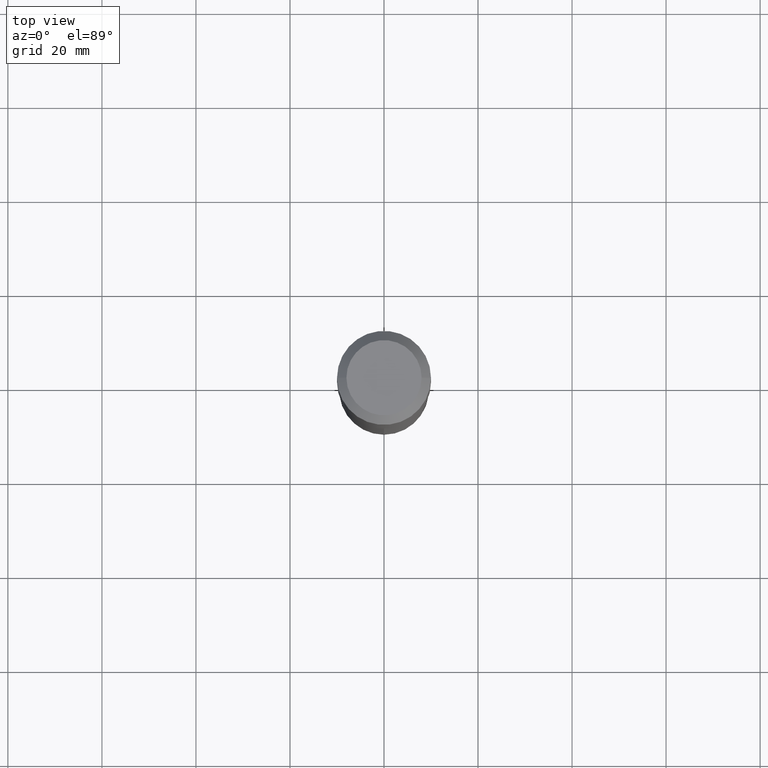
[diagram: clean part render]
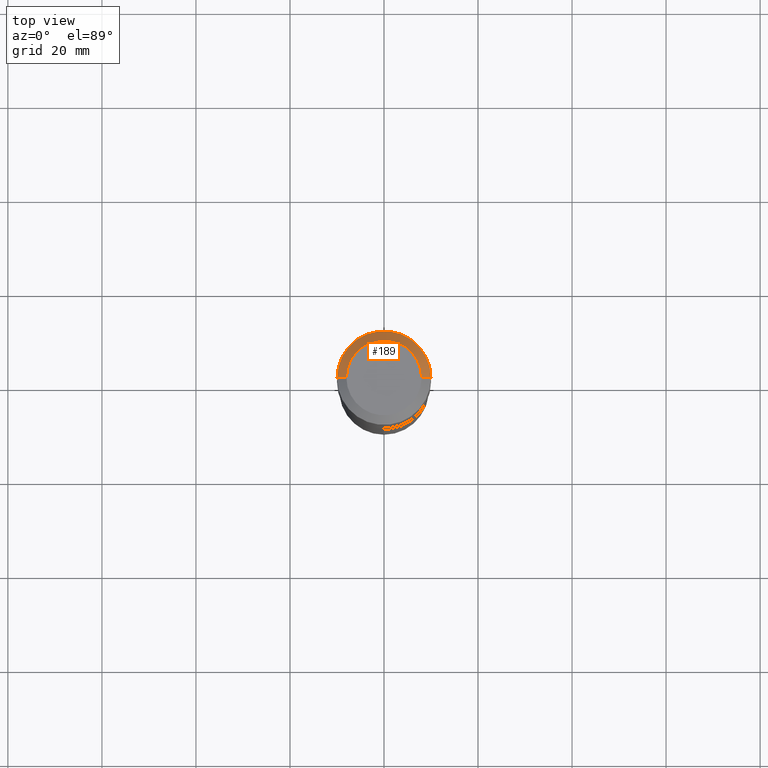
[diagram: same view with one face highlighted and labeled with its STEP entity id]
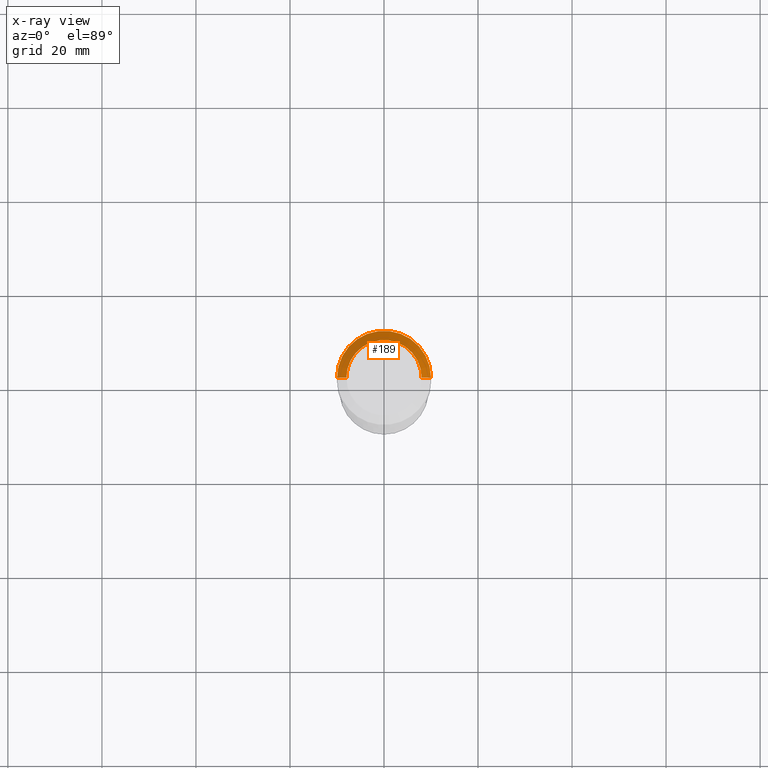
[diagram: x-ray of the same camera — body ghosted, the highlighted face saturated]
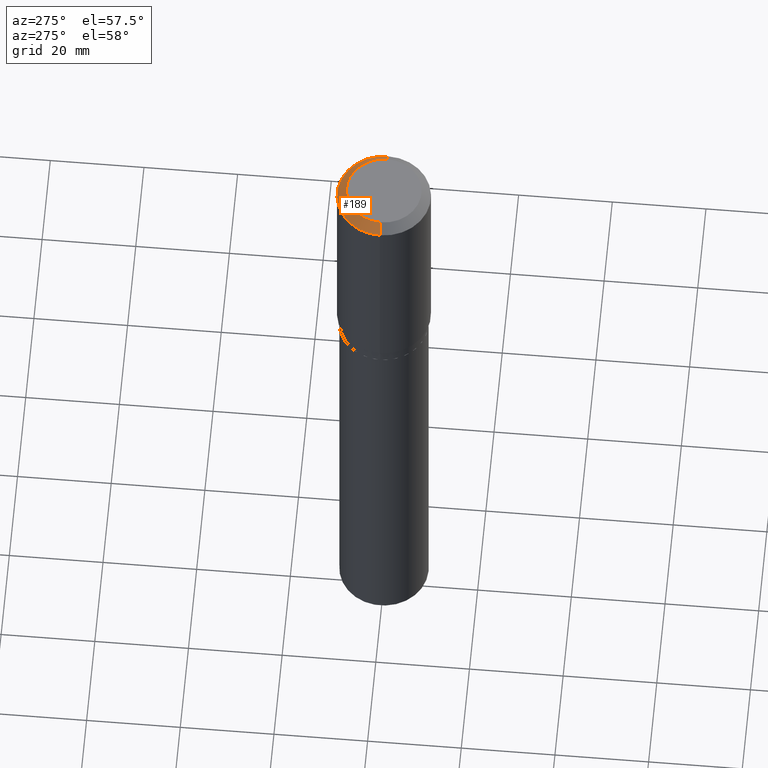
[diagram: same view with one face highlighted and labeled with its STEP entity id]
A machine part, top view. The second image highlights one B-rep face of the part: STEP entity #189.
The next image is the same camera in x-ray: the body ghosted, the highlighted face saturated — about 0% of this face is hidden behind the body in this view.
A second angle (auxiliary view) of the same face is appended — the face is thin or edge-on in the first view.
In plain terms, the highlighted conical surface has half-angle 45 deg.
Its self-contained STEP definition (entity closure, byte-faithful):
#3 = CARTESIAN_POINT ( 'NONE',  ( 1.925562137990188729E-30, -2.749192406205110629E-16, -0.07874000000000049015 ) ) ;
#19 = ORIENTED_EDGE ( 'NONE', *, *, #158, .T. ) ;
#20 = CIRCLE ( 'NONE', #126, 0.3937000000000000499 ) ;
#26 = CARTESIAN_POINT ( 'NONE',  ( -9.427742298522567634E-47, 1.346031739168368355E-32, 3.855188123715870730E-18 ) ) ;
#27 = DIRECTION ( 'NONE',  ( -0.7071067811865453523, 2.468850131082234184E-15, -0.7071067811865496822 ) ) ;
#39 = VERTEX_POINT ( 'NONE', #453 ) ;
#45 = VERTEX_POINT ( 'NONE', #201 ) ;
#56 = DIRECTION ( 'NONE',  ( -1.000000000000000000, 6.982962677686265922E-15, 0.000000000000000000 ) ) ;
#57 = CIRCLE ( 'NONE', #119, 0.3149600000000000177 ) ;
#64 = VECTOR ( 'NONE', #451, 39.37007874015748143 ) ;
#86 = ORIENTED_EDGE ( 'NONE', *, *, #123, .T. ) ;
#97 = FACE_OUTER_BOUND ( 'NONE', #407, .T. ) ;
#119 = AXIS2_PLACEMENT_3D ( 'NONE', #26, #177, #309 ) ;
#123 = EDGE_CURVE ( 'NONE', #184, #39, #20, .T. ) ;
#126 = AXIS2_PLACEMENT_3D ( 'NONE', #3, #358, #267 ) ;
#129 = CARTESIAN_POINT ( 'NONE',  ( 0.3937000000000000499, -3.024111646825594378E-15, -0.07874000000000049015 ) ) ;
#131 = CARTESIAN_POINT ( 'NONE',  ( 1.925562137990188729E-30, -2.749192406205110629E-16, -0.07874000000000049015 ) ) ;
#151 = CARTESIAN_POINT ( 'NONE',  ( 0.3937000000000000499, -2.975897302343163203E-15, -0.07874000000000049015 ) ) ;
#158 = EDGE_CURVE ( 'NONE', #45, #184, #194, .T. ) ;
#177 = DIRECTION ( 'NONE',  ( -2.445468806185136597E-29, 3.491481338843145583E-15, 1.000000000000000000 ) ) ;
#184 = VERTEX_POINT ( 'NONE', #129 ) ;
#189 = ADVANCED_FACE ( 'NONE', ( #97 ), #210, .T. ) ;
#194 = LINE ( 'NONE', #151, #64 ) ;
#201 = CARTESIAN_POINT ( 'NONE',  ( 0.3149600000000000177, -2.568339875860642378E-15, 3.855188123732540039E-18 ) ) ;
#210 = CONICAL_SURFACE ( 'NONE', #311, 0.3937000000000000499, 0.7853981633974452814 ) ;
#218 = CARTESIAN_POINT ( 'NONE',  ( -0.3149600000000000177, 2.336813545274319235E-15, 3.855188123700009542E-18 ) ) ;
#221 = CARTESIAN_POINT ( 'NONE',  ( -0.3937000000000000499, 2.474273165584572449E-15, -0.07874000000000049015 ) ) ;
#267 = DIRECTION ( 'NONE',  ( 1.000000000000000000, -6.982962677686265922E-15, 0.000000000000000000 ) ) ;
#273 = VECTOR ( 'NONE', #27, 39.37007874015748143 ) ;
#285 = ORIENTED_EDGE ( 'NONE', *, *, #357, .F. ) ;
#303 = LINE ( 'NONE', #221, #273 ) ;
#309 = DIRECTION ( 'NONE',  ( 1.000000000000000000, -6.982962677686265922E-15, 4.876223630392693006E-29 ) ) ;
#311 = AXIS2_PLACEMENT_3D ( 'NONE', #131, #402, #56 ) ;
#328 = VERTEX_POINT ( 'NONE', #218 ) ;
#357 = EDGE_CURVE ( 'NONE', #328, #39, #303, .T. ) ;
#358 = DIRECTION ( 'NONE',  ( -2.445468806185136597E-29, 3.491481338843145583E-15, 1.000000000000000000 ) ) ;
#388 = EDGE_CURVE ( 'NONE', #45, #328, #57, .T. ) ;
#402 = DIRECTION ( 'NONE',  ( 2.445468806185136597E-29, -3.491481338843145583E-15, -1.000000000000000000 ) ) ;
#407 = EDGE_LOOP ( 'NONE', ( #445, #19, #86, #285 ) ) ;
#445 = ORIENTED_EDGE ( 'NONE', *, *, #388, .F. ) ;
#451 = DIRECTION ( 'NONE',  ( 0.7071067811865453523, -7.319954787623248157E-15, -0.7071067811865496822 ) ) ;
#453 = CARTESIAN_POINT ( 'NONE',  ( -0.3937000000000000499, -6.855902885022426635E-16, -0.07874000000000049015 ) ) ;